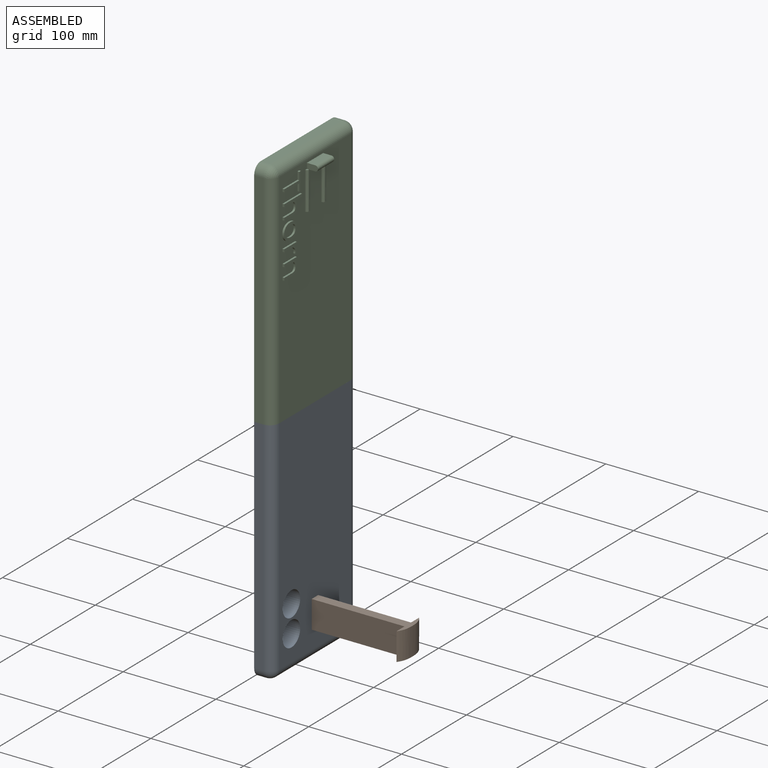
[diagram: assembled view]
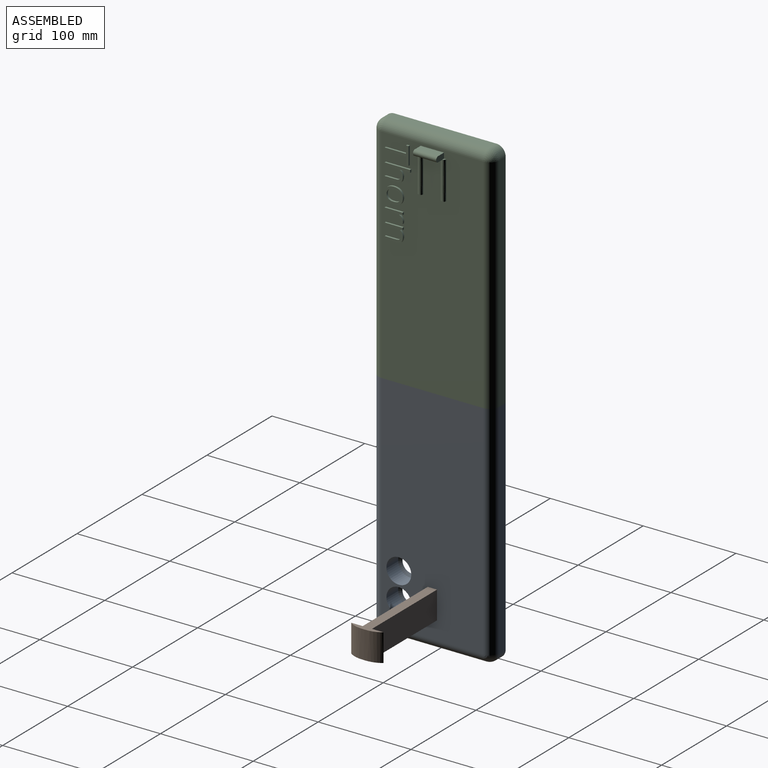
[diagram: assembled view, second angle]
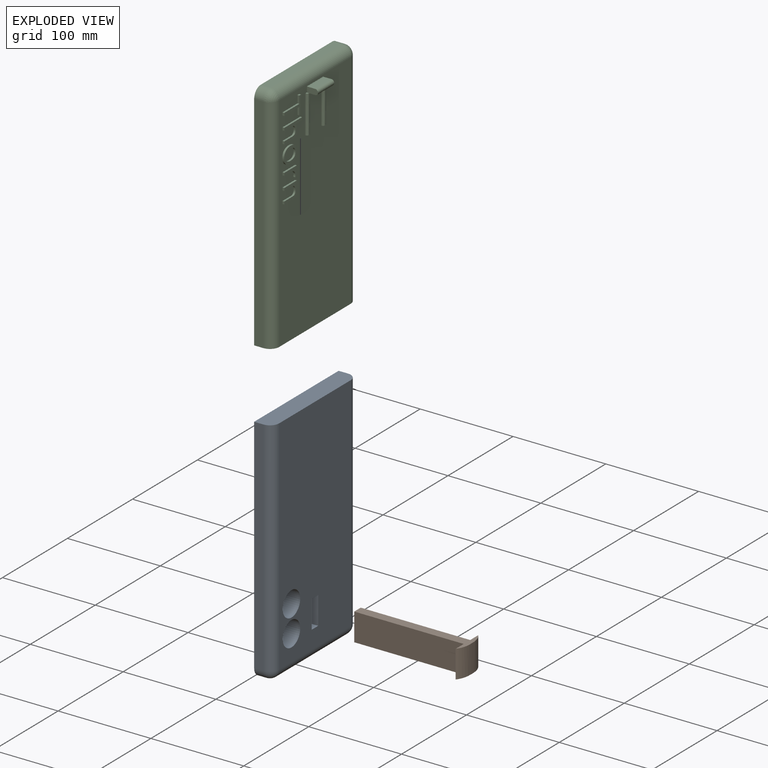
[diagram: exploded view]
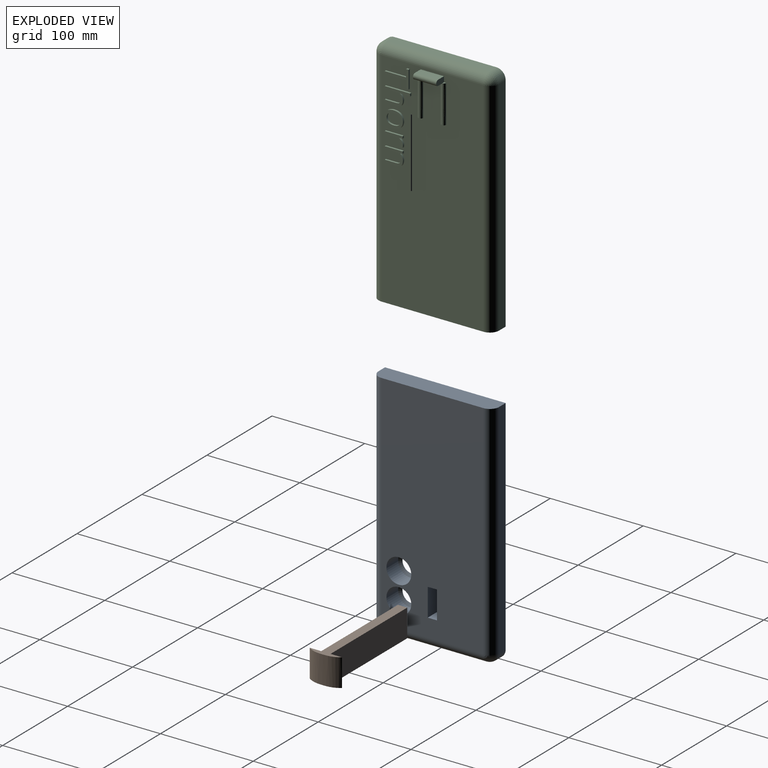
[diagram: exploded view, second angle]
ASSEMBLY  parts=3 mates=2
PART A: 22 faces, bbox 250x130x20 mm
  f0: plane 240x110mm, normal (0,0,1), area 24971.8mm2, adj f6,f8,f9,f13,f15,f16,f17,f18
  f1: plane 110x10mm, normal (1,0,0), area 1100mm2, adj f4,f5,f8,f11
  f2: plane 240x10mm, normal (0,1,0), area 2400mm2, adj f4,f9,f11,f16
  f3: plane 240x10mm, normal (0,-1,0), area 2400mm2, adj f4,f5,f6,f16
  f4: plane 250x130mm, normal (0,0,-1), area 31819.8mm2, adj f1,f2,f3,f5,f11,f12,f14,f16
  f5: cylinder r=10mm len=10mm, axis (0,0,-1), area 157.1mm2, adj f1,f3,f4,f7
  f6: cylinder r=10mm len=240mm, axis (-1,0,0), area 3769.9mm2, adj f0,f3,f7,f16
  f7: sphere r=10mm, area 157.1mm2, adj f5,f6,f8
  f8: cylinder r=10mm len=110mm, axis (0,-1,0), area 1727.9mm2, adj f0,f1,f7,f10
  f9: cylinder r=10mm len=240mm, axis (1,0,0), area 3769.9mm2, adj f0,f2,f10,f16
  f10: sphere r=10mm, area 157.1mm2, adj f8,f9,f11
  f11: cylinder r=10mm len=10mm, axis (0,0,1), area 157.1mm2, adj f1,f2,f4,f10
  f12: cone r=0mm half-angle=59deg, axis (0,0,1), area 286.3mm2, adj f4,f13
  f13: cylinder r=13.4mm len=26.8mm, axis (0,0,1), area 1515.5mm2, adj f0,f12
  f14: cone r=0mm half-angle=59deg, axis (0,0,1), area 286.3mm2, adj f4,f15
  f15: cylinder r=13.4mm len=26.8mm, axis (0,0,1), area 1515.5mm2, adj f0,f14
  f16: plane 130x20mm, normal (-1,0,0), area 2557.1mm2, adj f0,f2,f3,f4,f6,f9
  f17: plane 30x18mm, normal (0,1,0), area 540mm2, adj f0,f18,f20,f21
  f18: plane 18x10mm, normal (-1,0,0), area 180mm2, adj f0,f17,f19,f21
  f19: plane 30x18mm, normal (0,-1,0), area 540mm2, adj f0,f18,f20,f21
  f20: plane 18x10mm, normal (1,0,0), area 180mm2, adj f0,f17,f19,f21
  f21: plane 30x10mm, normal (0,0,1), area 300mm2, adj f17,f18,f19,f20
PART B: 9 faces, bbox 123.7x50.7x33.6 mm
  f0: plane 123.73x35.46mm, normal (0,0,1), area 1306.1mm2, adj f1,f3,f4,f5,f6,f7,f8
  f1: plane 29.9x10mm, normal (-1,0,0), area 299mm2, adj f0,f2,f3,f4
  f2: plane 123.73x35.46mm, normal (0,0,-1), area 1306.1mm2, adj f1,f3,f4,f5,f6,f7,f8
  f3: plane 118x29.9mm, normal (0,-1,0), area 3528.2mm2, adj f0,f1,f2,f5
  f4: plane 118x29.9mm, normal (0,1,0), area 3528.2mm2, adj f0,f1,f2,f6
  f5: plane 29.9x12.36mm, normal (-1,0,0), area 369.7mm2, adj f0,f2,f3,f7
  f6: plane 29.9x12.36mm, normal (-1,0,0), area 369.7mm2, adj f0,f2,f4,f8
  f7: bspline ~32.89x25mm, area 552mm2, adj f0,f2,f5,f8
  f8: bspline ~32.89x25mm, area 552mm2, adj f0,f2,f6,f7
PART C: 105 faces, bbox 250.2x130.2x32.2 mm
  f0: plane 240x110mm, normal (0,0,1), area 25068.5mm2, adj f1,f2,f3,f4,f10,f11,f15,f16
  f1: plane 2.51x2.4mm, normal (-1,0,0), area 4.9mm2, adj f0,f2,f100
  f2: bspline ~44.83x2.5mm, area 165.1mm2, adj f0,f1,f94,f99,f100,f102
  f3: plane 130x20mm, normal (1,0,0), area 2557.1mm2, adj f0,f10,f11,f12,f13,f14
  f4: cylinder r=10mm len=110mm, axis (0,1,0), area 1727.9mm2, adj f0,f6,f8,f9
  f5: cylinder r=10mm len=10mm, axis (0,0,-1), area 157.1mm2, adj f6,f9,f12,f14
  f6: plane 110x10mm, normal (-1,0,0), area 1100mm2, adj f4,f5,f7,f12
  f7: cylinder r=10mm len=10mm, axis (0,0,1), area 157.1mm2, adj f6,f8,f12,f13
  f8: sphere r=10mm, area 157.1mm2, adj f4,f7,f11
  f9: sphere r=10mm, area 157.1mm2, adj f4,f5,f10
  f10: cylinder r=10mm len=240mm, axis (1,0,0), area 3769.9mm2, adj f0,f3,f9,f14
  f11: cylinder r=10mm len=240mm, axis (-1,0,0), area 3769.9mm2, adj f0,f3,f8,f13
  f12: plane 250x130mm, normal (0,0,-1), area 32457.1mm2, adj f3,f5,f6,f7,f13,f14
  f13: plane 240x10mm, normal (0,-1,0), area 2400mm2, adj f3,f7,f11,f12
  f14: plane 240x10mm, normal (0,1,0), area 2400mm2, adj f3,f5,f10,f12
  f15: plane 23.05x2mm, normal (1,0,0), area 46.1mm2, adj f0,f16,f22,f23
  f16: plane 8.14x2mm, normal (0,-1,0), area 16.3mm2, adj f0,f15,f17,f23
  f17: plane 2.66x2mm, normal (1,0,0), area 5.3mm2, adj f0,f16,f18,f23
  f18: plane 19.27x2mm, normal (0,1,0), area 38.5mm2, adj f0,f17,f19,f23
  f19: plane 2.66x2mm, normal (-1,0,0), area 5.3mm2, adj f0,f18,f20,f23
  f20: plane 8.14x2mm, normal (0,-1,0), area 16.3mm2, adj f0,f19,f21,f23
  f21: plane 23.05x2mm, normal (-1,0,0), area 46.1mm2, adj f0,f20,f22,f23
  f22: plane 2.99x2mm, normal (0,-1,0), area 6mm2, adj f0,f15,f21,f23
  f23: plane 25.7x19.27mm, normal (0,0,1), area 120mm2, adj f15,f16,f17,f18,f19,f20,f21,f22
  f24: plane 2.92x2mm, normal (0,-1,0), area 5.8mm2, adj f0,f25,f41,f42
  f25: plane 12.57x2mm, normal (1,0,0), area 25.1mm2, adj f0,f24,f26,f42
  f26: extruded ~5.34x2mm, area 11.6mm2, adj f0,f25,f27,f42
  f27: extruded ~5.3x2mm, area 11.4mm2, adj f0,f26,f28,f42
  f28: extruded ~3.63x2mm, area 7.5mm2, adj f0,f27,f29,f42
  f29: extruded ~2.45x2.19mm, area 6.7mm2, adj f0,f28,f30,f42
  f30: plane 2x0.17mm, normal (0,1,0), area 0.3mm2, adj f0,f29,f31,f42
  f31: extruded ~2.48x2mm, area 5mm2, adj f0,f30,f32,f42
  f32: plane 8.28x2mm, normal (1,0,0), area 16.6mm2, adj f0,f31,f33,f42
  f33: plane 2.92x2mm, normal (0,1,0), area 5.8mm2, adj f0,f32,f34,f42
  f34: plane 27.36x2mm, normal (-1,0,0), area 54.7mm2, adj f0,f33,f35,f42
  f35: plane 2.92x2mm, normal (0,-1,0), area 5.8mm2, adj f0,f34,f36,f42
  f36: plane 10.08x2mm, normal (1,0,0), area 20.2mm2, adj f0,f35,f37,f42
  f37: extruded ~5.41x2mm, area 11.4mm2, adj f0,f36,f38,f42
  f38: extruded ~4.44x2mm, area 9.8mm2, adj f0,f37,f39,f42
  f39: extruded ~3.36x2mm, area 7.3mm2, adj f0,f38,f40,f42
  f40: extruded ~3.51x2mm, area 7.5mm2, adj f0,f39,f41,f42
  f41: plane 12.47x2mm, normal (-1,0,0), area 24.9mm2, adj f0,f24,f40,f42
  f42: plane 27.36x16.11mm, normal (0,0,1), area 158.5mm2, adj f24,f25,f26,f27,f28,f29,f30,f31
  f43: extruded ~7.28x2.38mm, area 15.7mm2, adj f0,f44,f59,f60
  f44: extruded ~6.42x2.69mm, area 14.4mm2, adj f0,f43,f45,f60
  f45: extruded ~6.54x2.63mm, area 14.6mm2, adj f0,f44,f46,f60
  f46: extruded ~7.34x2.36mm, area 15.8mm2, adj f0,f45,f47,f60
  f47: extruded ~5.31x2mm, area 10.9mm2, adj f0,f46,f48,f60
  f48: extruded ~3.48x3.09mm, area 9.5mm2, adj f0,f47,f49,f60
  f49: extruded ~4.59x2mm, area 9.6mm2, adj f0,f48,f50,f60
  f50: extruded ~6.56x2.65mm, area 14.6mm2, adj f0,f49,f59,f60
  f51: extruded ~5.61x2mm, area 11.8mm2, adj f52,f58,f60,f61
  f52: extruded ~4.32x2mm, area 9.8mm2, adj f51,f53,f60,f61
  f53: extruded ~4.39x2mm, area 9.9mm2, adj f52,f54,f60,f61
  f54: extruded ~5.58x2mm, area 11.8mm2, adj f53,f55,f60,f61
  f55: extruded ~5.64x2mm, area 11.9mm2, adj f54,f56,f60,f61
  f56: extruded ~4.35x2mm, area 9.9mm2, adj f55,f57,f60,f61
  f57: extruded ~4.34x2mm, area 9.9mm2, adj f56,f58,f60,f61
  f58: extruded ~5.63x2mm, area 11.8mm2, adj f51,f57,f60,f61
  f59: extruded ~7.36x2.37mm, area 15.8mm2, adj f0,f43,f50,f60
  f60: plane 19.98x17.7mm, normal (0,0,1), area 142.6mm2, adj f43,f44,f45,f46,f47,f48,f49,f50
  f61: plane 15.05x11.66mm, normal (0,0,1), area 145.5mm2, adj f51,f52,f53,f54,f55,f56,f57,f58
  f62: extruded ~3.32x2mm, area 7.1mm2, adj f0,f63,f74,f75
  f63: extruded ~2.9x2.58mm, area 7.8mm2, adj f0,f62,f64,f75
  f64: plane 2x0.14mm, normal (0,1,0), area 0.3mm2, adj f0,f63,f65,f75
  f65: plane 3.57x2mm, normal (1,0.09,0), area 7.2mm2, adj f0,f64,f66,f75
  f66: plane 2.41x2mm, normal (0,1,0), area 4.8mm2, adj f0,f65,f67,f75
  f67: plane 19.27x2mm, normal (-1,0,0), area 38.5mm2, adj f0,f66,f68,f75
  f68: plane 2.92x2mm, normal (0,-1,0), area 5.8mm2, adj f0,f67,f69,f75
  f69: plane 10.34x2mm, normal (1,0,0), area 20.7mm2, adj f0,f68,f70,f75
  f70: extruded ~4.73x2mm, area 10.3mm2, adj f0,f69,f71,f75
  f71: extruded ~4x2mm, area 9.1mm2, adj f0,f70,f72,f75
  f72: extruded ~2.11x2mm, area 4.3mm2, adj f0,f71,f73,f75
  f73: plane 2.71x2mm, normal (0.99,-0.15,0), area 5.5mm2, adj f0,f72,f74,f75
  f74: extruded ~2.3x2mm, area 4.6mm2, adj f0,f62,f73,f75
  f75: plane 19.62x11.09mm, normal (0,0,1), area 77.4mm2, adj f62,f63,f64,f65,f66,f67,f68,f69
  f76: plane 2.92x2mm, normal (0,-1,0), area 5.8mm2, adj f0,f77,f92,f93
  f77: plane 12.57x2mm, normal (1,0,0), area 25.1mm2, adj f0,f76,f78,f93
  f78: extruded ~5.38x2mm, area 11.6mm2, adj f0,f77,f79,f93
  f79: extruded ~5.24x2mm, area 11.3mm2, adj f0,f78,f80,f93
  f80: extruded ~3.6x2mm, area 7.4mm2, adj f0,f79,f81,f93
  f81: extruded ~2.52x2.21mm, area 6.8mm2, adj f0,f80,f82,f93
  f82: plane 2x0.14mm, normal (0,1,0), area 0.3mm2, adj f0,f81,f83,f93
  f83: plane 2.64x2mm, normal (0.98,0.18,0), area 5.4mm2, adj f0,f82,f84,f93
  f84: plane 2.37x2mm, normal (0,1,0), area 4.7mm2, adj f0,f83,f85,f93
  f85: plane 19.27x2mm, normal (-1,0,0), area 38.5mm2, adj f0,f84,f86,f93
  f86: plane 2.92x2mm, normal (0,-1,0), area 5.8mm2, adj f0,f85,f87,f93
  f87: plane 10.11x2mm, normal (1,0,0), area 20.2mm2, adj f0,f86,f88,f93
  f88: extruded ~5.4x2mm, area 11.4mm2, adj f0,f87,f89,f93
  f89: extruded ~4.43x2mm, area 9.7mm2, adj f0,f88,f90,f93
  f90: extruded ~3.36x2mm, area 7.3mm2, adj f0,f89,f91,f93
  f91: extruded ~3.51x2mm, area 7.5mm2, adj f0,f90,f92,f93
  f92: plane 12.47x2mm, normal (-1,0,0), area 24.9mm2, adj f0,f76,f91,f93
  f93: plane 19.62x16.11mm, normal (0,0,1), area 134.6mm2, adj f76,f77,f78,f79,f80,f81,f82,f83
  f94: plane 5.07x2.62mm, normal (1,0,0), area 10.3mm2, adj f0,f2,f99
  f95: plane 5.1x2.65mm, normal (1,0,0), area 10.3mm2, adj f0,f97,f98
  f96: plane 2.51x2.4mm, normal (-1,0,0), area 4.9mm2, adj f0,f98,f103
  f97: bspline ~44.83x2.5mm, area 163.7mm2, adj f0,f95,f98,f102
  f98: bspline ~44.83x2.5mm, area 165.1mm2, adj f0,f95,f96,f97,f102,f103
  f99: bspline ~44.83x2.5mm, area 163.7mm2, adj f0,f2,f94,f102
  f100: plane 12x6mm, normal (0,-1,0), area 67.9mm2, adj f0,f1,f2,f101,f102,f104
  f101: plane 25x9mm, normal (-1,0,0), area 225mm2, adj f0,f100,f103,f104
  f102: plane 25.07x9.07mm, normal (1,0,0), area 214.1mm2, adj f0,f2,f97,f98,f99,f100,f103,f104
  f103: plane 12x6mm, normal (0,1,0), area 67.9mm2, adj f0,f96,f98,f101,f102,f104
  f104: cylinder r=3mm len=25mm, axis (0,1,0), area 235.6mm2, adj f100,f101,f102,f103
PLACE A rot(axis=(0,1,0),90deg) t=(212.65,5.86,256.07)mm
PLACE B t=(273.65,10.86,50.96)mm
PLACE C rot(axis=(0,1,0),90deg) t=(212.65,5.86,256.07)mm
MATE fastened C.f3 <-> A.f16  axis (0,0,-1) through (222.52,5.86,256.07)mm
MATE slider A.f21 <-> B.f1  axis (1,0,0) through (214.65,5.86,50.96)mm
